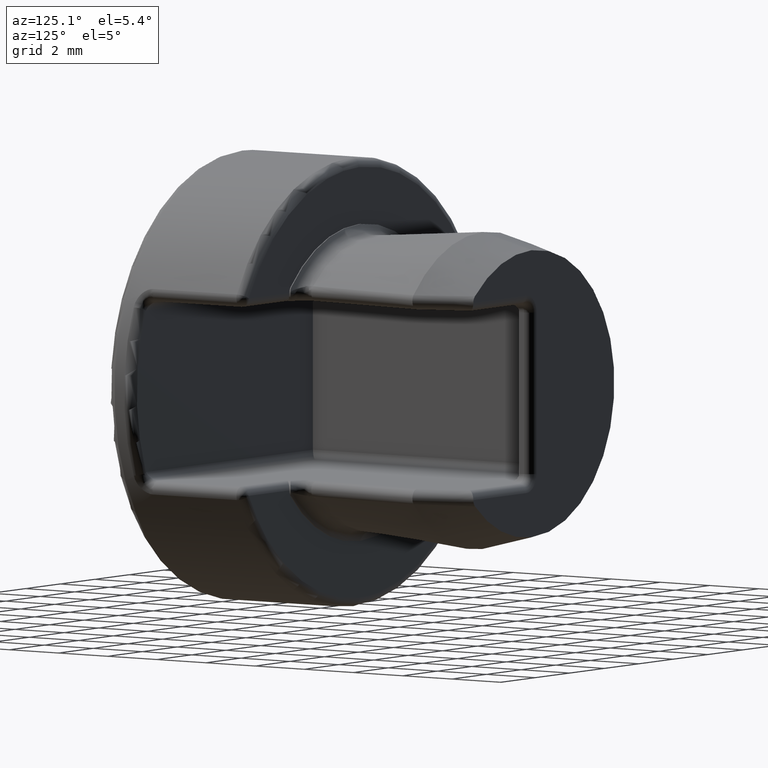
[diagram: clean part render]
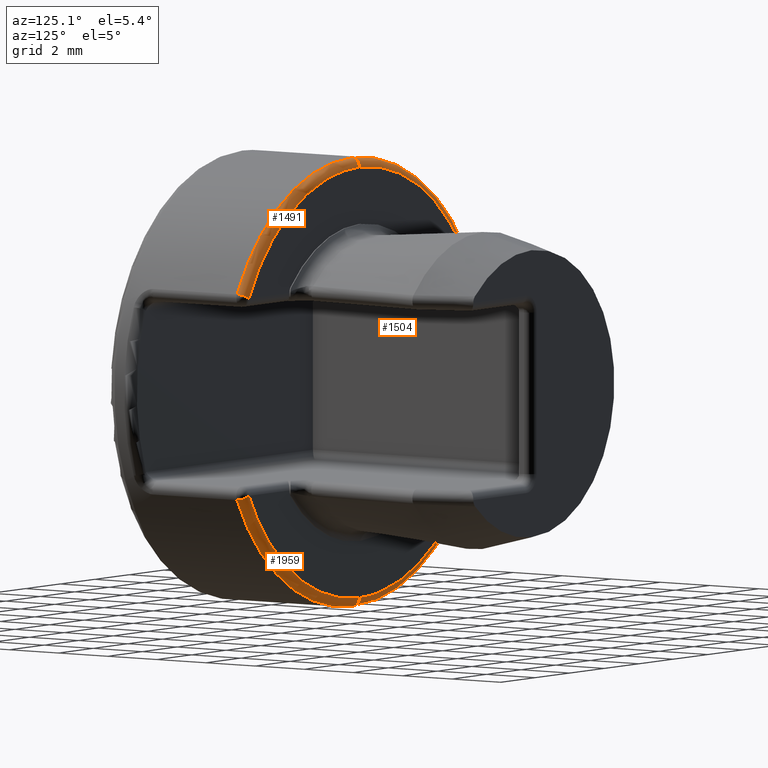
[diagram: same view with one multi-face feature highlighted, each face labeled with its STEP entity id]
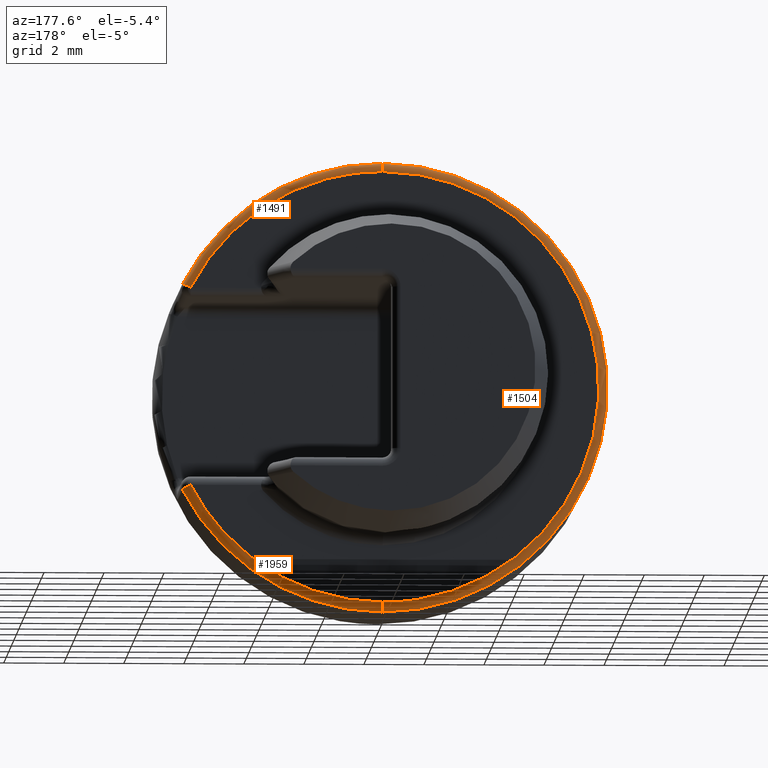
[diagram: same view with one multi-face feature highlighted, each face labeled with its STEP entity id]
A machine part, auxiliary view. The highlighted faces form ONE feature: a constant-radius fillet chain: 3 tangent blend faces with common blend radius 0.3 mm. The faces share edges in the B-rep.
A second angle (auxiliary view) of the same feature is appended — it is thin or edge-on in the first view.
Their STEP definitions:
[1] entity #1504 (Torus):
#1489 = ORIENTED_EDGE ( 'NONE', *, *, #1490, .F. ) ;
#1490 = EDGE_CURVE ( 'NONE', #1508, #1515, #2857, .T. ) ;
#1504 = ADVANCED_FACE ( 'NONE', ( #2916 ), #2897, .T. ) ;
#1505 = EDGE_LOOP ( 'NONE', ( #1506, #1510, #1513, #1489 ) ) ;
#1506 = ORIENTED_EDGE ( 'NONE', *, *, #1507, .T. ) ;
#1507 = EDGE_CURVE ( 'NONE', #1508, #1509, #2880, .T. ) ;
#1508 = VERTEX_POINT ( 'NONE', #2882 ) ;
#1509 = VERTEX_POINT ( 'NONE', #2881 ) ;
#1510 = ORIENTED_EDGE ( 'NONE', *, *, #1511, .T. ) ;
#1511 = EDGE_CURVE ( 'NONE', #1509, #1512, #2919, .T. ) ;
#1512 = VERTEX_POINT ( 'NONE', #2874 ) ;
#1513 = ORIENTED_EDGE ( 'NONE', *, *, #1514, .F. ) ;
#1514 = EDGE_CURVE ( 'NONE', #1515, #1512, #2873, .T. ) ;
#1515 = VERTEX_POINT ( 'NONE', #2868 ) ;
#2844 = DIRECTION ( 'NONE',  ( 1.000000000000000000, 0.0000000000000000000, 0.0000000000000000000 ) ) ;
#2851 = DIRECTION ( 'NONE',  ( 0.0000000000000000000, 0.0000000000000000000, 1.000000000000000000 ) ) ;
#2854 = AXIS2_PLACEMENT_3D ( 'NONE', #2855, #2844, #2851 ) ;
#2855 = CARTESIAN_POINT ( 'NONE',  ( 0.0000000000000000000, 4.700000000000000200, 7.200000000000001100 ) ) ;
#2857 = CIRCLE ( 'NONE', #2854, 0.2999999999999999300 ) ;
#2868 = CARTESIAN_POINT ( 'NONE',  ( 9.184547653667829400E-016, 4.700000000000000200, 7.500000000000000000 ) ) ;
#2869 = DIRECTION ( 'NONE',  ( 0.0000000000000000000, 0.0000000000000000000, -1.000000000000000000 ) ) ;
#2870 = DIRECTION ( 'NONE',  ( 0.0000000000000000000, -1.000000000000000000, 0.0000000000000000000 ) ) ;
#2871 = CARTESIAN_POINT ( 'NONE',  ( 0.0000000000000000000, 4.700000000000000200, 0.0000000000000000000 ) ) ;
#2872 = AXIS2_PLACEMENT_3D ( 'NONE', #2871, #2870, #2869 ) ;
#2873 = CIRCLE ( 'NONE', #2872, 7.500000000000000000 ) ;
#2874 = CARTESIAN_POINT ( 'NONE',  ( 0.0000000000000000000, 4.700000000000000200, -7.500000000000000000 ) ) ;
#2875 = DIRECTION ( 'NONE',  ( 1.224606353822380200E-016, 0.0000000000000000000, -1.000000000000000000 ) ) ;
#2876 = DIRECTION ( 'NONE',  ( -1.000000000000000000, 0.0000000000000000000, -1.224606353822377300E-016 ) ) ;
#2880 =( BOUNDED_CURVE ( )  B_SPLINE_CURVE ( 3, ( #2923, #2922, #2921, #2920 ),
 .UNSPECIFIED., .F., .F. ) 
 B_SPLINE_CURVE_WITH_KNOTS ( ( 4, 4 ),
 ( 0.0000000000000000000, 1.000000000000000000 ),
 .UNSPECIFIED. ) 
 CURVE ( )  GEOMETRIC_REPRESENTATION_ITEM ( )  RATIONAL_B_SPLINE_CURVE ( ( 1.000000000000000000, 0.3333333333333333700, 0.3333333333333333700, 1.000000000000000000 ) ) 
 REPRESENTATION_ITEM ( '' )  );
#2881 = CARTESIAN_POINT ( 'NONE',  ( 8.890642128750459000E-016, 5.000000000000000900, -7.200000000000002000 ) ) ;
#2882 = CARTESIAN_POINT ( 'NONE',  ( 0.0000000000000000000, 5.000000000000000900, 7.200000000000002000 ) ) ;
#2893 = DIRECTION ( 'NONE',  ( 0.0000000000000000000, 0.0000000000000000000, 1.000000000000000000 ) ) ;
#2894 = DIRECTION ( 'NONE',  ( 0.0000000000000000000, 1.000000000000000000, 0.0000000000000000000 ) ) ;
#2895 = CARTESIAN_POINT ( 'NONE',  ( 0.0000000000000000000, 4.700000000000000200, 0.0000000000000000000 ) ) ;
#2896 = AXIS2_PLACEMENT_3D ( 'NONE', #2895, #2894, #2893 ) ;
#2897 = TOROIDAL_SURFACE ( 'NONE', #2896, 7.200000000000001100, 0.2999999999999999900 ) ;
#2916 = FACE_OUTER_BOUND ( 'NONE', #1505, .T. ) ;
#2917 = CARTESIAN_POINT ( 'NONE',  ( 8.817165747521116900E-016, 4.700000000000000200, -7.200000000000001100 ) ) ;
#2918 = AXIS2_PLACEMENT_3D ( 'NONE', #2917, #2876, #2875 ) ;
#2919 = CIRCLE ( 'NONE', #2918, 0.2999999999999999300 ) ;
#2920 = CARTESIAN_POINT ( 'NONE',  ( 8.890642128750459000E-016, 5.000000000000000900, -7.200000000000002000 ) ) ;
#2921 = CARTESIAN_POINT ( 'NONE',  ( -14.39999999999999900, 5.000000000000000000, -7.200000000000002800 ) ) ;
#2922 = CARTESIAN_POINT ( 'NONE',  ( -14.40000000000000000, 5.000000000000000000, 7.200000000000002000 ) ) ;
#2923 = CARTESIAN_POINT ( 'NONE',  ( 0.0000000000000000000, 5.000000000000000900, 7.200000000000002000 ) ) ;
[2] entity #1959 (Torus):
#928 = CIRCLE ( 'NONE', #934, 0.2999999999999997700 ) ;
#931 = DIRECTION ( 'NONE',  ( 0.8887803753209062600, 0.0000000000000000000, -0.4583333333333164400 ) ) ;
#932 = DIRECTION ( 'NONE',  ( -0.4583333333333153800, 0.0000000000000000000, -0.8887803753209068100 ) ) ;
#933 = CARTESIAN_POINT ( 'NONE',  ( 6.399218702310530000, 4.699999999999999300, -3.299999999999871000 ) ) ;
#934 = AXIS2_PLACEMENT_3D ( 'NONE', #933, #932, #931 ) ;
#1012 = CARTESIAN_POINT ( 'NONE',  ( 6.399218702310528300, 5.000000000000000000, -3.299999999999871000 ) ) ;
#1063 = DIRECTION ( 'NONE',  ( 0.0000000000000000000, 0.0000000000000000000, 1.000000000000000000 ) ) ;
#1064 = DIRECTION ( 'NONE',  ( 0.0000000000000000000, 1.000000000000000000, 0.0000000000000000000 ) ) ;
#1071 = FACE_OUTER_BOUND ( 'NONE', #1960, .T. ) ;
#1072 = CARTESIAN_POINT ( 'NONE',  ( 0.0000000000000000000, 4.700000000000000200, 0.0000000000000000000 ) ) ;
#1073 = AXIS2_PLACEMENT_3D ( 'NONE', #1072, #1064, #1063 ) ;
#1074 = TOROIDAL_SURFACE ( 'NONE', #1073, 7.200000000000001100, 0.2999999999999999900 ) ;
#1346 = EDGE_CURVE ( 'NONE', #1512, #1347, #2150, .T. ) ;
#1347 = VERTEX_POINT ( 'NONE', #2146 ) ;
#1375 = EDGE_CURVE ( 'NONE', #1509, #1925, #2262, .T. ) ;
#1509 = VERTEX_POINT ( 'NONE', #2881 ) ;
#1511 = EDGE_CURVE ( 'NONE', #1509, #1512, #2919, .T. ) ;
#1512 = VERTEX_POINT ( 'NONE', #2874 ) ;
#1880 = EDGE_CURVE ( 'NONE', #1925, #1347, #928, .T. ) ;
#1925 = VERTEX_POINT ( 'NONE', #1012 ) ;
#1959 = ADVANCED_FACE ( 'NONE', ( #1071 ), #1074, .T. ) ;
#1960 = EDGE_LOOP ( 'NONE', ( #1961, #1962, #1963, #1964 ) ) ;
#1961 = ORIENTED_EDGE ( 'NONE', *, *, #1511, .F. ) ;
#1962 = ORIENTED_EDGE ( 'NONE', *, *, #1375, .T. ) ;
#1963 = ORIENTED_EDGE ( 'NONE', *, *, #1880, .T. ) ;
#1964 = ORIENTED_EDGE ( 'NONE', *, *, #1346, .F. ) ;
#2146 = CARTESIAN_POINT ( 'NONE',  ( 6.665852814906766200, 4.700000000000000200, -3.437499999999933400 ) ) ;
#2147 = DIRECTION ( 'NONE',  ( 0.0000000000000000000, -1.000000000000000000, 0.0000000000000000000 ) ) ;
#2148 = CARTESIAN_POINT ( 'NONE',  ( 0.0000000000000000000, 4.700000000000000200, 0.0000000000000000000 ) ) ;
#2149 = AXIS2_PLACEMENT_3D ( 'NONE', #2148, #2147, #2232 ) ;
#2150 = CIRCLE ( 'NONE', #2149, 7.500000000000000000 ) ;
#2232 = DIRECTION ( 'NONE',  ( 0.0000000000000000000, 0.0000000000000000000, -1.000000000000000000 ) ) ;
#2258 = CARTESIAN_POINT ( 'NONE',  ( 6.399218702310528300, 5.000000000000000000, -3.299999999999871000 ) ) ;
#2259 = CARTESIAN_POINT ( 'NONE',  ( 5.130765705093786300, 5.000000000000000000, -5.759729740239735400 ) ) ;
#2260 = CARTESIAN_POINT ( 'NONE',  ( 2.767533812109368900, 5.000000000000000000, -7.200000000000001100 ) ) ;
#2261 = CARTESIAN_POINT ( 'NONE',  ( 8.890642128750459000E-016, 5.000000000000000900, -7.200000000000002000 ) ) ;
#2262 =( BOUNDED_CURVE ( )  B_SPLINE_CURVE ( 3, ( #2261, #2260, #2259, #2258 ),
 .UNSPECIFIED., .F., .T. ) 
 B_SPLINE_CURVE_WITH_KNOTS ( ( 4, 4 ),
 ( 0.0000000000000000000, 1.000000000000000000 ),
 .UNSPECIFIED. ) 
 CURVE ( )  GEOMETRIC_REPRESENTATION_ITEM ( )  RATIONAL_B_SPLINE_CURVE ( ( 1.000000000000000000, 0.9026083758866407800, 0.9026083758866407800, 1.000000000000000000 ) ) 
 REPRESENTATION_ITEM ( '' )  );
#2874 = CARTESIAN_POINT ( 'NONE',  ( 0.0000000000000000000, 4.700000000000000200, -7.500000000000000000 ) ) ;
#2875 = DIRECTION ( 'NONE',  ( 1.224606353822380200E-016, 0.0000000000000000000, -1.000000000000000000 ) ) ;
#2876 = DIRECTION ( 'NONE',  ( -1.000000000000000000, 0.0000000000000000000, -1.224606353822377300E-016 ) ) ;
#2881 = CARTESIAN_POINT ( 'NONE',  ( 8.890642128750459000E-016, 5.000000000000000900, -7.200000000000002000 ) ) ;
#2917 = CARTESIAN_POINT ( 'NONE',  ( 8.817165747521116900E-016, 4.700000000000000200, -7.200000000000001100 ) ) ;
#2918 = AXIS2_PLACEMENT_3D ( 'NONE', #2917, #2876, #2875 ) ;
#2919 = CIRCLE ( 'NONE', #2918, 0.2999999999999999300 ) ;
[3] entity #1491 (Torus):
#1490 = EDGE_CURVE ( 'NONE', #1508, #1515, #2857, .T. ) ;
#1491 = ADVANCED_FACE ( 'NONE', ( #2859 ), #2899, .T. ) ;
#1492 = ORIENTED_EDGE ( 'NONE', *, *, #1493, .T. ) ;
#1493 = EDGE_CURVE ( 'NONE', #1494, #1508, #2888, .T. ) ;
#1494 = VERTEX_POINT ( 'NONE', #2887 ) ;
#1495 = ORIENTED_EDGE ( 'NONE', *, *, #1490, .T. ) ;
#1496 = ORIENTED_EDGE ( 'NONE', *, *, #1497, .F. ) ;
#1497 = EDGE_CURVE ( 'NONE', #1498, #1515, #2867, .T. ) ;
#1498 = VERTEX_POINT ( 'NONE', #2932 ) ;
#1499 = ORIENTED_EDGE ( 'NONE', *, *, #1500, .T. ) ;
#1500 = EDGE_CURVE ( 'NONE', #1498, #1494, #2931, .T. ) ;
#1508 = VERTEX_POINT ( 'NONE', #2882 ) ;
#1515 = VERTEX_POINT ( 'NONE', #2868 ) ;
#1516 = EDGE_LOOP ( 'NONE', ( #1492, #1495, #1496, #1499 ) ) ;
#2844 = DIRECTION ( 'NONE',  ( 1.000000000000000000, 0.0000000000000000000, 0.0000000000000000000 ) ) ;
#2851 = DIRECTION ( 'NONE',  ( 0.0000000000000000000, 0.0000000000000000000, 1.000000000000000000 ) ) ;
#2854 = AXIS2_PLACEMENT_3D ( 'NONE', #2855, #2844, #2851 ) ;
#2855 = CARTESIAN_POINT ( 'NONE',  ( 0.0000000000000000000, 4.700000000000000200, 7.200000000000001100 ) ) ;
#2857 = CIRCLE ( 'NONE', #2854, 0.2999999999999999300 ) ;
#2859 = FACE_OUTER_BOUND ( 'NONE', #1516, .T. ) ;
#2867 = CIRCLE ( 'NONE', #2892, 7.500000000000000000 ) ;
#2868 = CARTESIAN_POINT ( 'NONE',  ( 9.184547653667829400E-016, 4.700000000000000200, 7.500000000000000000 ) ) ;
#2877 = DIRECTION ( 'NONE',  ( 0.0000000000000000000, 0.0000000000000000000, 1.000000000000000000 ) ) ;
#2882 = CARTESIAN_POINT ( 'NONE',  ( 0.0000000000000000000, 5.000000000000000900, 7.200000000000002000 ) ) ;
#2883 = DIRECTION ( 'NONE',  ( 0.8887803753208973800, 0.0000000000000000000, 0.4583333333333337600 ) ) ;
#2884 = DIRECTION ( 'NONE',  ( -0.4583333333333334800, -0.0000000000000000000, 0.8887803753208974900 ) ) ;
#2885 = CARTESIAN_POINT ( 'NONE',  ( 6.399218702310462500, 4.700000000000000200, 3.300000000000001200 ) ) ;
#2886 = AXIS2_PLACEMENT_3D ( 'NONE', #2885, #2884, #2883 ) ;
#2887 = CARTESIAN_POINT ( 'NONE',  ( 6.399218702310505200, 5.000000000000000000, 3.299999999999914600 ) ) ;
#2888 =( BOUNDED_CURVE ( )  B_SPLINE_CURVE ( 3, ( #2938, #2937, #2935, #2934 ),
 .UNSPECIFIED., .F., .T. ) 
 B_SPLINE_CURVE_WITH_KNOTS ( ( 4, 4 ),
 ( 0.0000000000000000000, 1.000000000000000000 ),
 .UNSPECIFIED. ) 
 CURVE ( )  GEOMETRIC_REPRESENTATION_ITEM ( )  RATIONAL_B_SPLINE_CURVE ( ( 1.000000000000000000, 0.9026083758866443300, 0.9026083758866443300, 1.000000000000000000 ) ) 
 REPRESENTATION_ITEM ( '' )  );
#2889 = CARTESIAN_POINT ( 'NONE',  ( 0.0000000000000000000, 4.700000000000000200, 0.0000000000000000000 ) ) ;
#2890 = DIRECTION ( 'NONE',  ( 0.0000000000000000000, -1.000000000000000000, 0.0000000000000000000 ) ) ;
#2891 = CARTESIAN_POINT ( 'NONE',  ( 0.0000000000000000000, 4.700000000000000200, 0.0000000000000000000 ) ) ;
#2892 = AXIS2_PLACEMENT_3D ( 'NONE', #2891, #2890, #2933 ) ;
#2899 = TOROIDAL_SURFACE ( 'NONE', #2936, 7.200000000000001100, 0.2999999999999999900 ) ;
#2904 = DIRECTION ( 'NONE',  ( 0.0000000000000000000, 1.000000000000000000, 0.0000000000000000000 ) ) ;
#2931 = CIRCLE ( 'NONE', #2886, 0.2999999999999998200 ) ;
#2932 = CARTESIAN_POINT ( 'NONE',  ( 6.665852814906730700, 4.700000000000000200, 3.437500000000001300 ) ) ;
#2933 = DIRECTION ( 'NONE',  ( 0.0000000000000000000, 0.0000000000000000000, -1.000000000000000000 ) ) ;
#2934 = CARTESIAN_POINT ( 'NONE',  ( 0.0000000000000000000, 5.000000000000000900, 7.200000000000002000 ) ) ;
#2935 = CARTESIAN_POINT ( 'NONE',  ( 2.767533812109310700, 5.000000000000000900, 7.200000000000000200 ) ) ;
#2936 = AXIS2_PLACEMENT_3D ( 'NONE', #2889, #2904, #2877 ) ;
#2937 = CARTESIAN_POINT ( 'NONE',  ( 5.130765705093693000, 5.000000000000000900, 5.759729740239787800 ) ) ;
#2938 = CARTESIAN_POINT ( 'NONE',  ( 6.399218702310505200, 5.000000000000000000, 3.299999999999914600 ) ) ;